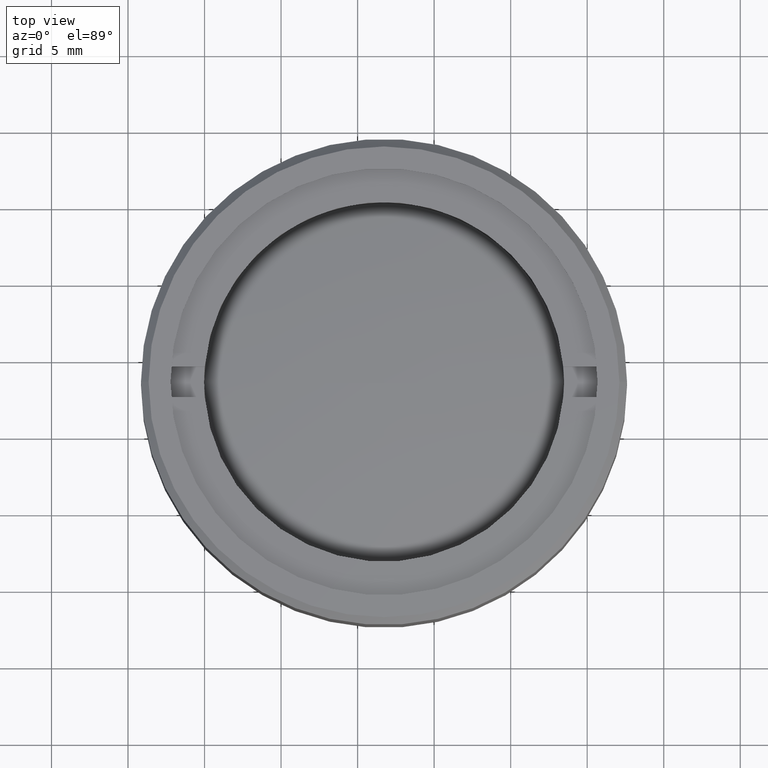
[diagram: clean part render]
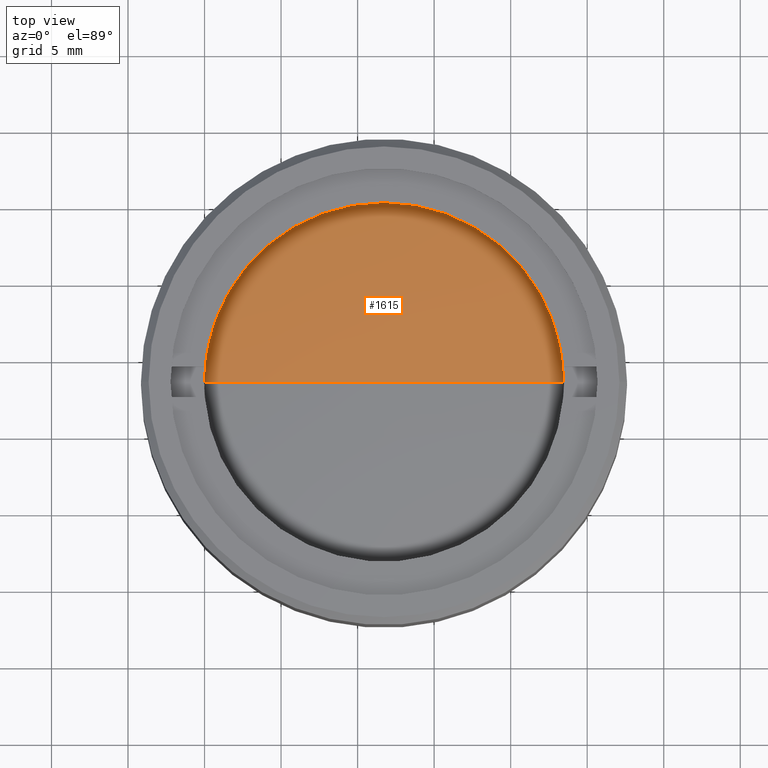
[diagram: same view with one face highlighted and labeled with its STEP entity id]
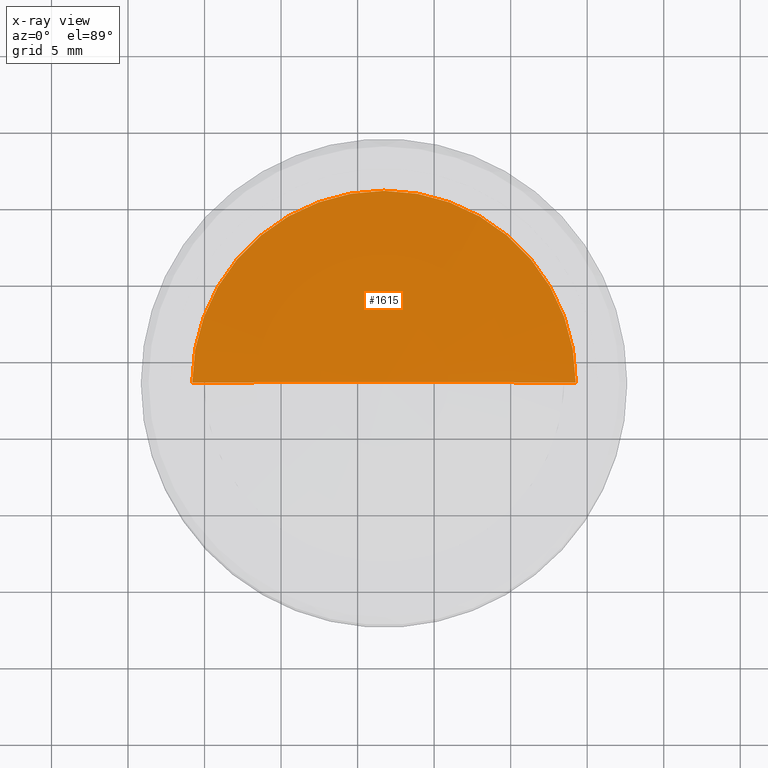
[diagram: x-ray of the same camera — body ghosted, the highlighted face saturated]
A machine part, top view. The second image highlights one B-rep face of the part: STEP entity #1615.
The next image is the same camera in x-ray: the body ghosted, the highlighted face saturated — about 0% of this face is hidden behind the body in this view.
In plain terms, the highlighted spherical surface has radius 91.6 mm.
Its self-contained STEP definition (entity closure, byte-faithful):
#17 = AXIS2_PLACEMENT_3D ( 'NONE', #681, #1605, #1495 ) ;
#175 = CARTESIAN_POINT ( 'NONE',  ( 12.52735229759299962, 1.544729812110494989E-15, -0.8606731102109580478 ) ) ;
#257 = CIRCLE ( 'NONE', #1426, 91.59999999999999432 ) ;
#292 = VERTEX_POINT ( 'NONE', #175 ) ;
#326 = SPHERICAL_SURFACE ( 'NONE', #618, 91.59999999999999432 ) ;
#410 = DIRECTION ( 'NONE',  ( 0.000000000000000000, -1.000000000000000000, 0.000000000000000000 ) ) ;
#454 = DIRECTION ( 'NONE',  ( -1.000000000000000000, 0.000000000000000000, 0.000000000000000000 ) ) ;
#588 = DIRECTION ( 'NONE',  ( 0.000000000000000000, -0.000000000000000000, 1.000000000000000000 ) ) ;
#613 = EDGE_CURVE ( 'NONE', #292, #1079, #257, .T. ) ;
#615 = CIRCLE ( 'NONE', #17, 12.52735229759299962 ) ;
#618 = AXIS2_PLACEMENT_3D ( 'NONE', #1253, #588, #454 ) ;
#656 = CARTESIAN_POINT ( 'NONE',  ( -12.52735229759299962, 0.000000000000000000, -0.8606731102109570486 ) ) ;
#681 = CARTESIAN_POINT ( 'NONE',  ( 3.314213413947755049E-15, 0.000000000000000000, -0.8606731102109580478 ) ) ;
#948 = CARTESIAN_POINT ( 'NONE',  ( 0.000000000000000000, 0.000000000000000000, -91.59999999999999432 ) ) ;
#1053 = ORIENTED_EDGE ( 'NONE', *, *, #613, .F. ) ;
#1063 = DIRECTION ( 'NONE',  ( 0.000000000000000000, 0.000000000000000000, -1.000000000000000000 ) ) ;
#1079 = VERTEX_POINT ( 'NONE', #656 ) ;
#1234 = EDGE_LOOP ( 'NONE', ( #1053, #1408 ) ) ;
#1253 = CARTESIAN_POINT ( 'NONE',  ( 0.000000000000000000, 0.000000000000000000, -91.59999999999999432 ) ) ;
#1408 = ORIENTED_EDGE ( 'NONE', *, *, #1409, .T. ) ;
#1409 = EDGE_CURVE ( 'NONE', #292, #1079, #615, .T. ) ;
#1426 = AXIS2_PLACEMENT_3D ( 'NONE', #948, #410, #1063 ) ;
#1495 = DIRECTION ( 'NONE',  ( -1.000000000000000000, 0.000000000000000000, 3.461871740268125507E-17 ) ) ;
#1505 = FACE_OUTER_BOUND ( 'NONE', #1234, .T. ) ;
#1605 = DIRECTION ( 'NONE',  ( 3.461871740268124891E-17, 0.000000000000000000, 1.000000000000000000 ) ) ;
#1615 = ADVANCED_FACE ( 'NONE', ( #1505 ), #326, .T. ) ;